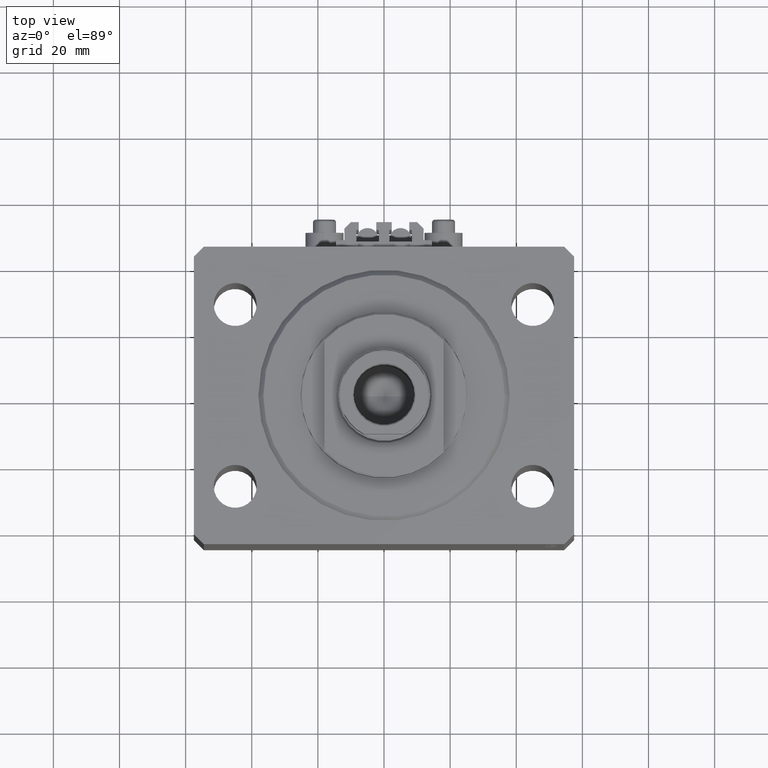
[diagram: clean part render]
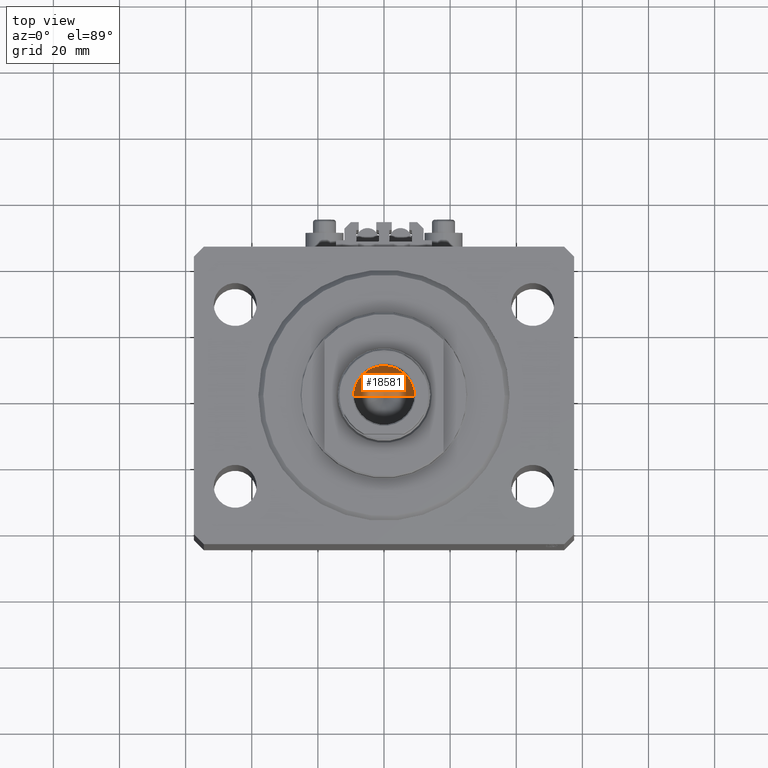
[diagram: same view with one face highlighted and labeled with its STEP entity id]
A machine part, top view. The second image highlights one B-rep face of the part: STEP entity #18581.
In plain terms, the highlighted conical surface has half-angle 59 deg.
Its self-contained STEP definition (entity closure, byte-faithful):
#1030 = VERTEX_POINT ( 'NONE', #34956 ) ;
#2187 = EDGE_CURVE ( 'NONE', #1030, #23696, #10573, .T. ) ;
#2788 = ORIENTED_EDGE ( 'NONE', *, *, #6655, .T. ) ;
#3931 = DIRECTION ( 'NONE',  ( -0.000000000000000000, -0.000000000000000000, 1.000000000000000000 ) ) ;
#5955 = FACE_OUTER_BOUND ( 'NONE', #24088, .T. ) ;
#6655 = EDGE_CURVE ( 'NONE', #1030, #9397, #21383, .T. ) ;
#8789 = CIRCLE ( 'NONE', #21266, 9.249999999999994671 ) ;
#9397 = VERTEX_POINT ( 'NONE', #16391 ) ;
#9601 = CARTESIAN_POINT ( 'NONE',  ( -9.249999999999994671, 1.132798289211300909E-15, 72.09999999999999432 ) ) ;
#10573 = LINE ( 'NONE', #9601, #45062 ) ;
#12027 = CONICAL_SURFACE ( 'NONE', #18267, 9.249999999999994671, 1.029744258676653423 ) ;
#13492 = CARTESIAN_POINT ( 'NONE',  ( 0.000000000000000000, 0.000000000000000000, 72.09999999999999432 ) ) ;
#13739 = DIRECTION ( 'NONE',  ( -0.000000000000000000, -0.000000000000000000, 1.000000000000000000 ) ) ;
#14745 = VECTOR ( 'NONE', #17950, 1000.000000000000000 ) ;
#15580 = EDGE_CURVE ( 'NONE', #9397, #23696, #8789, .T. ) ;
#16391 = CARTESIAN_POINT ( 'NONE',  ( 9.249999999999994671, 0.000000000000000000, 72.09999999999999432 ) ) ;
#17950 = DIRECTION ( 'NONE',  ( 0.8571673007021117785, 0.000000000000000000, 0.5150380749100550437 ) ) ;
#18267 = AXIS2_PLACEMENT_3D ( 'NONE', #13492, #13739, #20824 ) ;
#18581 = ADVANCED_FACE ( 'NONE', ( #5955 ), #12027, .F. ) ;
#20824 = DIRECTION ( 'NONE',  ( 1.000000000000000000, 0.000000000000000000, 0.000000000000000000 ) ) ;
#21266 = AXIS2_PLACEMENT_3D ( 'NONE', #34389, #3931, #41225 ) ;
#21383 = LINE ( 'NONE', #44512, #14745 ) ;
#23696 = VERTEX_POINT ( 'NONE', #25626 ) ;
#24088 = EDGE_LOOP ( 'NONE', ( #27344, #2788, #31250 ) ) ;
#25626 = CARTESIAN_POINT ( 'NONE',  ( -9.249999999999994671, 1.132798289211300909E-15, 72.09999999999999432 ) ) ;
#27344 = ORIENTED_EDGE ( 'NONE', *, *, #2187, .F. ) ;
#31250 = ORIENTED_EDGE ( 'NONE', *, *, #15580, .T. ) ;
#34389 = CARTESIAN_POINT ( 'NONE',  ( 0.000000000000000000, 0.000000000000000000, 72.09999999999999432 ) ) ;
#34956 = CARTESIAN_POINT ( 'NONE',  ( -1.046994375366439223E-14, 0.000000000000000000, 66.54203927399505858 ) ) ;
#39369 = DIRECTION ( 'NONE',  ( -0.8571673007021117785, 1.049727191138617956E-16, 0.5150380749100550437 ) ) ;
#41225 = DIRECTION ( 'NONE',  ( 1.000000000000000000, 0.000000000000000000, 0.000000000000000000 ) ) ;
#44512 = CARTESIAN_POINT ( 'NONE',  ( 9.249999999999994671, 0.000000000000000000, 72.09999999999999432 ) ) ;
#45062 = VECTOR ( 'NONE', #39369, 1000.000000000000000 ) ;